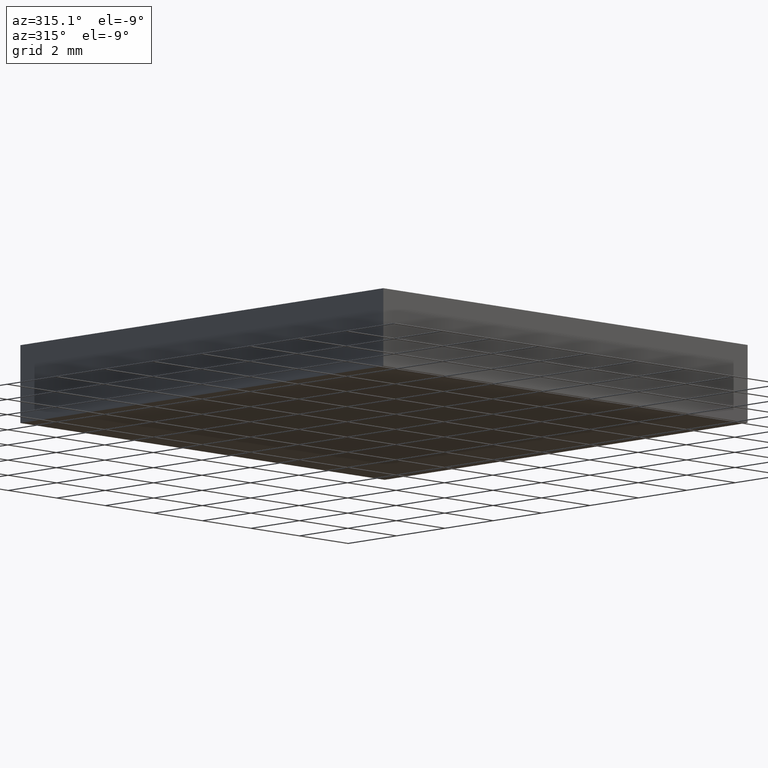
[diagram: clean part render]
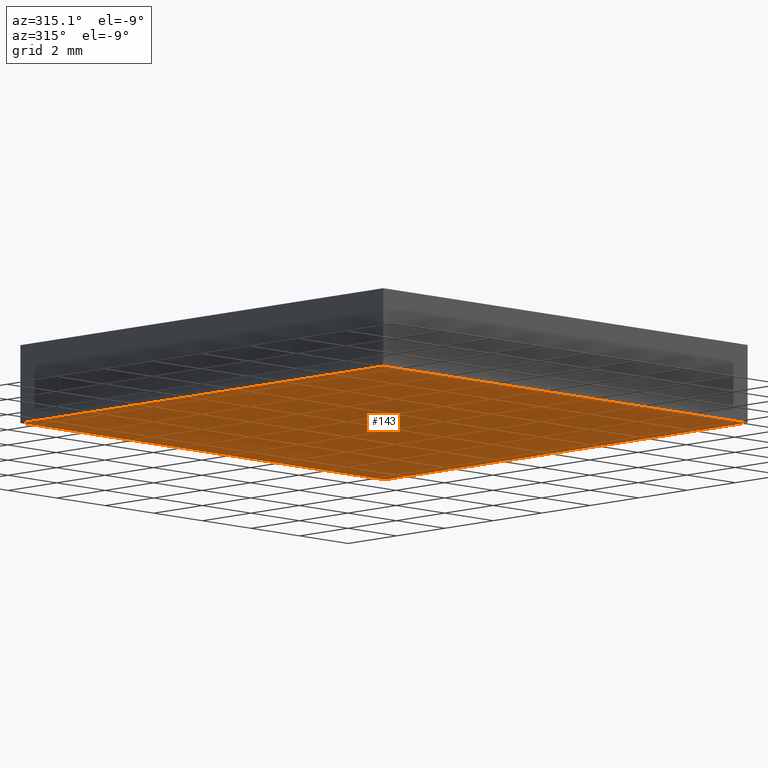
[diagram: same view with one face highlighted and labeled with its STEP entity id]
A machine part, auxiliary view. The second image highlights one B-rep face of the part: STEP entity #143.
In plain terms, the highlighted planar face has unit normal (-0, 0, 1).
Its self-contained STEP definition (entity closure, byte-faithful):
#7 = CARTESIAN_POINT ( 'NONE',  ( 46.80749197114184300, 38.28162091726329700, 0.0000000000000000000 ) ) ;
#13 = EDGE_CURVE ( 'NONE', #145, #85, #103, .T. ) ;
#15 = CARTESIAN_POINT ( 'NONE',  ( 61.80749197114184300, 38.28162091726330400, 0.0000000000000000000 ) ) ;
#17 = ORIENTED_EDGE ( 'NONE', *, *, #95, .F. ) ;
#38 = CARTESIAN_POINT ( 'NONE',  ( 61.80749197114184300, 23.28162091726329700, 0.0000000000000000000 ) ) ;
#43 = DIRECTION ( 'NONE',  ( 1.000000000000000000, 0.0000000000000000000, 0.0000000000000000000 ) ) ;
#44 = EDGE_CURVE ( 'NONE', #85, #135, #176, .T. ) ;
#47 = VERTEX_POINT ( 'NONE', #181 ) ;
#51 = ORIENTED_EDGE ( 'NONE', *, *, #13, .F. ) ;
#57 = EDGE_CURVE ( 'NONE', #135, #47, #189, .T. ) ;
#58 = DIRECTION ( 'NONE',  ( 4.625929269271485900E-016, -1.000000000000000000, 0.0000000000000000000 ) ) ;
#81 = LINE ( 'NONE', #7, #200 ) ;
#83 = AXIS2_PLACEMENT_3D ( 'NONE', #136, #105, #43 ) ;
#84 = CARTESIAN_POINT ( 'NONE',  ( 61.80749197114184300, 38.28162091726330400, 0.0000000000000000000 ) ) ;
#85 = VERTEX_POINT ( 'NONE', #38 ) ;
#86 = DIRECTION ( 'NONE',  ( 1.000000000000000000, 0.0000000000000000000, 0.0000000000000000000 ) ) ;
#95 = EDGE_CURVE ( 'NONE', #47, #145, #81, .T. ) ;
#97 = VECTOR ( 'NONE', #144, 1000.000000000000000 ) ;
#103 = LINE ( 'NONE', #194, #149 ) ;
#105 = DIRECTION ( 'NONE',  ( -0.0000000000000000000, 0.0000000000000000000, 1.000000000000000000 ) ) ;
#106 = ORIENTED_EDGE ( 'NONE', *, *, #44, .F. ) ;
#120 = EDGE_LOOP ( 'NONE', ( #17, #186, #106, #51 ) ) ;
#135 = VERTEX_POINT ( 'NONE', #15 ) ;
#136 = CARTESIAN_POINT ( 'NONE',  ( 0.0000000000000000000, 0.0000000000000000000, 0.0000000000000000000 ) ) ;
#142 = VECTOR ( 'NONE', #164, 1000.000000000000000 ) ;
#143 = ADVANCED_FACE ( 'NONE', ( #174 ), #202, .F. ) ;
#144 = DIRECTION ( 'NONE',  ( -4.625929269271483900E-016, 1.000000000000000000, -0.0000000000000000000 ) ) ;
#145 = VERTEX_POINT ( 'NONE', #183 ) ;
#149 = VECTOR ( 'NONE', #86, 1000.000000000000000 ) ;
#164 = DIRECTION ( 'NONE',  ( -1.000000000000000000, -4.625929269271485900E-016, -0.0000000000000000000 ) ) ;
#174 = FACE_OUTER_BOUND ( 'NONE', #120, .T. ) ;
#176 = LINE ( 'NONE', #84, #97 ) ;
#180 = CARTESIAN_POINT ( 'NONE',  ( 46.80749197114184300, 38.28162091726329700, 0.0000000000000000000 ) ) ;
#181 = CARTESIAN_POINT ( 'NONE',  ( 46.80749197114184300, 38.28162091726329700, 0.0000000000000000000 ) ) ;
#183 = CARTESIAN_POINT ( 'NONE',  ( 46.80749197114185000, 23.28162091726329700, 0.0000000000000000000 ) ) ;
#186 = ORIENTED_EDGE ( 'NONE', *, *, #57, .F. ) ;
#189 = LINE ( 'NONE', #180, #142 ) ;
#194 = CARTESIAN_POINT ( 'NONE',  ( 46.80749197114185000, 23.28162091726329700, 0.0000000000000000000 ) ) ;
#200 = VECTOR ( 'NONE', #58, 1000.000000000000000 ) ;
#202 = PLANE ( 'NONE',  #83 ) ;